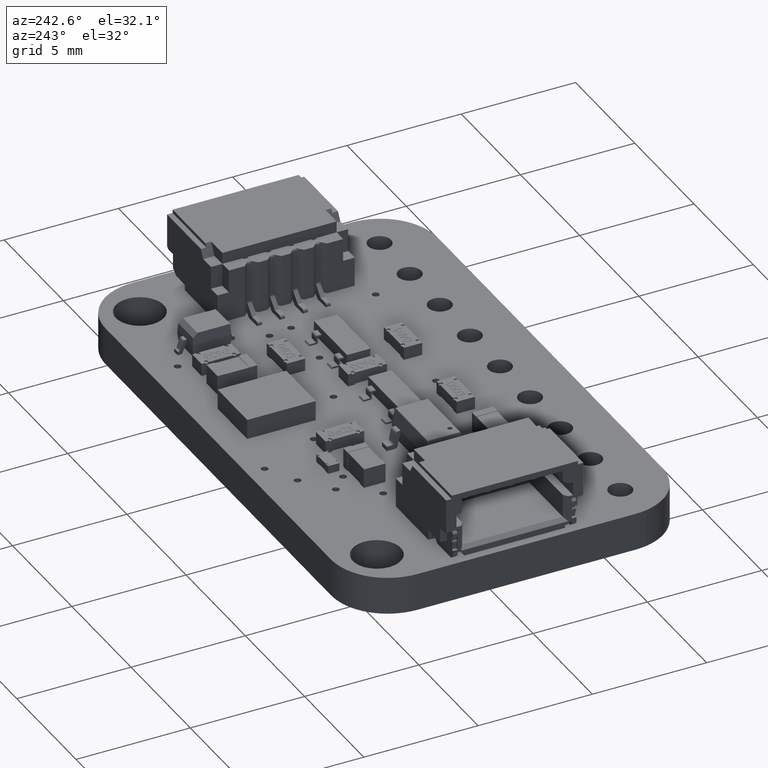
[diagram: clean part render]
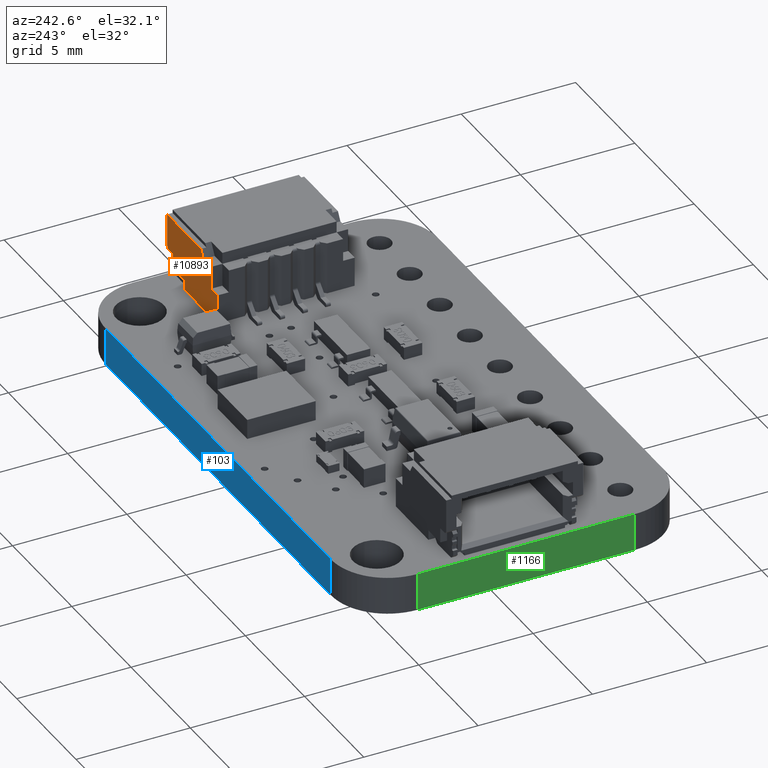
[diagram: same view with three faces highlighted in distinct colors, each labeled with its STEP entity id]
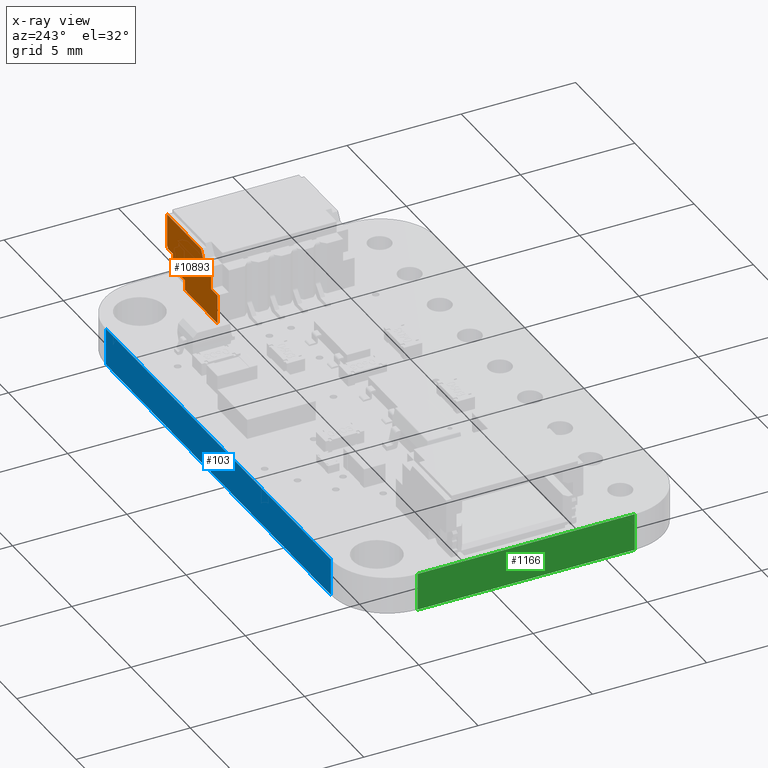
[diagram: x-ray of the same camera — body ghosted, the three highlighted faces saturated]
A machine part, auxiliary view with three faces highlighted in distinct colors.
The next image is the same camera in x-ray (body ghosted, the three faces saturated) — at least one of them is partly hidden behind the body in this view.
Their STEP definitions:

[orange] entity #10893 — the highlighted planar face has unit normal (0, -1, -0).
#8271 = VERTEX_POINT('',#8272);
#8272 = CARTESIAN_POINT('',(3.,1.655,3.895));
#8278 = EDGE_CURVE('',#8271,#8279,#8281,.T.);
#8279 = VERTEX_POINT('',#8280);
#8280 = CARTESIAN_POINT('',(3.,3.105,3.895));
#8281 = LINE('',#8282,#8283);
#8282 = CARTESIAN_POINT('',(3.,3.255,3.895));
#8283 = VECTOR('',#8284,1.);
#8284 = DIRECTION('',(-5.605193857299E-45,1.,3.914088217711E-59));
#8820 = VERTEX_POINT('',#8821);
#8821 = CARTESIAN_POINT('',(3.,0.47,-0.355));
#8827 = EDGE_CURVE('',#8820,#8828,#8830,.T.);
#8828 = VERTEX_POINT('',#8829);
#8829 = CARTESIAN_POINT('',(3.,0.47,2.395));
#8830 = LINE('',#8831,#8832);
#8831 = CARTESIAN_POINT('',(3.,0.47,-1.055));
#8832 = VECTOR('',#8833,1.);
#8833 = DIRECTION('',(-0.,-0.,1.));
#10196 = VERTEX_POINT('',#10197);
#10197 = CARTESIAN_POINT('',(3.,2.755,0.195));
#10212 = VERTEX_POINT('',#10213);
#10213 = CARTESIAN_POINT('',(3.,2.755,0.845));
#10219 = EDGE_CURVE('',#10212,#10196,#10220,.T.);
#10220 = LINE('',#10221,#10222);
#10221 = CARTESIAN_POINT('',(3.,2.755,-0.355));
#10222 = VECTOR('',#10223,1.);
#10223 = DIRECTION('',(-6.982966722219E-15,-0.,-1.));
#10234 = VERTEX_POINT('',#10235);
#10235 = CARTESIAN_POINT('',(3.,1.755,0.195));
#10250 = EDGE_CURVE('',#10196,#10234,#10251,.T.);
#10251 = LINE('',#10252,#10253);
#10252 = CARTESIAN_POINT('',(3.,3.255,0.195));
#10253 = VECTOR('',#10254,1.);
#10254 = DIRECTION('',(5.605193857299E-45,-1.,-3.914088217711E-59));
#10265 = VERTEX_POINT('',#10266);
#10266 = CARTESIAN_POINT('',(3.,0.905,3.395));
#10283 = VERTEX_POINT('',#10284);
#10284 = CARTESIAN_POINT('',(3.,0.905,2.395));
#10290 = EDGE_CURVE('',#10283,#10265,#10291,.T.);
#10291 = LINE('',#10292,#10293);
#10292 = CARTESIAN_POINT('',(3.,0.905,-0.355));
#10293 = VECTOR('',#10294,1.);
#10294 = DIRECTION('',(6.982966722219E-15,0.,1.));
#10305 = VERTEX_POINT('',#10306);
#10306 = CARTESIAN_POINT('',(3.,1.555,3.395));
#10321 = EDGE_CURVE('',#10265,#10305,#10322,.T.);
#10322 = LINE('',#10323,#10324);
#10323 = CARTESIAN_POINT('',(3.,3.255,3.395));
#10324 = VECTOR('',#10325,1.);
#10325 = DIRECTION('',(-5.605193857299E-45,1.,3.914088217711E-59));
#10335 = EDGE_CURVE('',#10305,#10336,#10338,.T.);
#10336 = VERTEX_POINT('',#10337);
#10337 = CARTESIAN_POINT('',(3.,1.555,3.795));
#10338 = LINE('',#10339,#10340);
#10339 = CARTESIAN_POINT('',(3.,1.555,-0.355));
#10340 = VECTOR('',#10341,1.);
#10341 = DIRECTION('',(6.982966722219E-15,0.,1.));
#10367 = VERTEX_POINT('',#10368);
#10368 = CARTESIAN_POINT('',(3.,1.755,-0.355));
#10383 = EDGE_CURVE('',#10234,#10367,#10384,.T.);
#10384 = LINE('',#10385,#10386);
#10385 = CARTESIAN_POINT('',(3.,1.755,-0.355));
#10386 = VECTOR('',#10387,1.);
#10387 = DIRECTION('',(-6.982966722219E-15,-0.,-1.));
#10509 = EDGE_CURVE('',#10510,#8279,#10512,.T.);
#10510 = VERTEX_POINT('',#10511);
#10511 = CARTESIAN_POINT('',(3.,3.105,1.047072594216));
#10512 = LINE('',#10513,#10514);
#10513 = CARTESIAN_POINT('',(3.,3.105,-1.055));
#10514 = VECTOR('',#10515,1.);
#10515 = DIRECTION('',(-0.,-0.,1.));
#10531 = EDGE_CURVE('',#8271,#10336,#10532,.T.);
#10532 = LINE('',#10533,#10534);
#10533 = CARTESIAN_POINT('',(3.,1.555,3.795));
#10534 = VECTOR('',#10535,1.);
#10535 = DIRECTION('',(-4.937703122081E-15,-0.707106781187,
    -0.707106781187));
#10832 = EDGE_CURVE('',#10212,#10510,#10833,.T.);
#10833 = LINE('',#10834,#10835);
#10834 = CARTESIAN_POINT('',(3.,2.755,0.845));
#10835 = VECTOR('',#10836,1.);
#10836 = DIRECTION('',(-0.,0.866025403784,0.5));
#10882 = EDGE_CURVE('',#8828,#10283,#10883,.T.);
#10883 = LINE('',#10884,#10885);
#10884 = CARTESIAN_POINT('',(3.,3.255,2.395));
#10885 = VECTOR('',#10886,1.);
#10886 = DIRECTION('',(-5.605193857299E-45,1.,3.914088217711E-59));
#10893 = ADVANCED_FACE('',(#10894),#10914,.F.);
#10894 = FACE_BOUND('',#10895,.T.);
#10895 = EDGE_LOOP('',(#10896,#10897,#10898,#10899,#10900,#10901,#10902,
    #10903,#10904,#10905,#10911,#10912,#10913));
#10896 = ORIENTED_EDGE('',*,*,#10832,.T.);
#10897 = ORIENTED_EDGE('',*,*,#10509,.T.);
#10898 = ORIENTED_EDGE('',*,*,#8278,.F.);
#10899 = ORIENTED_EDGE('',*,*,#10531,.T.);
#10900 = ORIENTED_EDGE('',*,*,#10335,.F.);
#10901 = ORIENTED_EDGE('',*,*,#10321,.F.);
#10902 = ORIENTED_EDGE('',*,*,#10290,.F.);
#10903 = ORIENTED_EDGE('',*,*,#10882,.F.);
#10904 = ORIENTED_EDGE('',*,*,#8827,.F.);
#10905 = ORIENTED_EDGE('',*,*,#10906,.T.);
#10906 = EDGE_CURVE('',#8820,#10367,#10907,.T.);
#10907 = LINE('',#10908,#10909);
#10908 = CARTESIAN_POINT('',(3.,3.255,-0.355));
#10909 = VECTOR('',#10910,1.);
#10910 = DIRECTION('',(2.480848139264E-29,1.,3.491483361109E-15));
#10911 = ORIENTED_EDGE('',*,*,#10383,.F.);
#10912 = ORIENTED_EDGE('',*,*,#10250,.F.);
#10913 = ORIENTED_EDGE('',*,*,#10219,.F.);
#10914 = PLANE('',#10915);
#10915 = AXIS2_PLACEMENT_3D('',#10916,#10917,#10918);
#10916 = CARTESIAN_POINT('',(3.,3.255,-0.355));
#10917 = DIRECTION('',(-1.,-5.605193857299E-45,6.982966722219E-15));
#10918 = DIRECTION('',(6.982966722219E-15,0.,1.));

[blue] entity #103 — the highlighted planar face has unit normal (0, -1, 0).
#103 = ADVANCED_FACE('',(#104),#138,.F.);
#104 = FACE_BOUND('',#105,.F.);
#105 = EDGE_LOOP('',(#106,#116,#124,#132));
#106 = ORIENTED_EDGE('',*,*,#107,.T.);
#107 = EDGE_CURVE('',#108,#110,#112,.T.);
#108 = VERTEX_POINT('',#109);
#109 = CARTESIAN_POINT('',(19.5,1.,-0.82));
#110 = VERTEX_POINT('',#111);
#111 = CARTESIAN_POINT('',(19.5,1.,0.82));
#112 = LINE('',#113,#114);
#113 = CARTESIAN_POINT('',(19.5,1.,-0.82));
#114 = VECTOR('',#115,1.);
#115 = DIRECTION('',(0.,0.,1.));
#116 = ORIENTED_EDGE('',*,*,#117,.T.);
#117 = EDGE_CURVE('',#110,#118,#120,.T.);
#118 = VERTEX_POINT('',#119);
#119 = CARTESIAN_POINT('',(0.5,1.,0.82));
#120 = LINE('',#121,#122);
#121 = CARTESIAN_POINT('',(19.5,1.,0.82));
#122 = VECTOR('',#123,1.);
#123 = DIRECTION('',(-1.,0.,0.));
#124 = ORIENTED_EDGE('',*,*,#125,.F.);
#125 = EDGE_CURVE('',#126,#118,#128,.T.);
#126 = VERTEX_POINT('',#127);
#127 = CARTESIAN_POINT('',(0.5,1.,-0.82));
#128 = LINE('',#129,#130);
#129 = CARTESIAN_POINT('',(0.5,1.,-0.82));
#130 = VECTOR('',#131,1.);
#131 = DIRECTION('',(0.,0.,1.));
#132 = ORIENTED_EDGE('',*,*,#133,.F.);
#133 = EDGE_CURVE('',#108,#126,#134,.T.);
#134 = LINE('',#135,#136);
#135 = CARTESIAN_POINT('',(19.5,1.,-0.82));
#136 = VECTOR('',#137,1.);
#137 = DIRECTION('',(-1.,0.,0.));
#138 = PLANE('',#139);
#139 = AXIS2_PLACEMENT_3D('',#140,#141,#142);
#140 = CARTESIAN_POINT('',(19.5,1.,-0.82));
#141 = DIRECTION('',(0.,-1.,0.));
#142 = DIRECTION('',(-1.,0.,0.));

[green] entity #1166 — the highlighted planar face has unit normal (1, 0, 0).
#1110 = VERTEX_POINT('',#1111);
#1111 = CARTESIAN_POINT('',(-2.,-1.5,0.82));
#1117 = EDGE_CURVE('',#1118,#1110,#1120,.T.);
#1118 = VERTEX_POINT('',#1119);
#1119 = CARTESIAN_POINT('',(-2.,-1.5,-0.82));
#1120 = LINE('',#1121,#1122);
#1121 = CARTESIAN_POINT('',(-2.,-1.5,-0.82));
#1122 = VECTOR('',#1123,1.);
#1123 = DIRECTION('',(0.,0.,1.));
#1166 = ADVANCED_FACE('',(#1167),#1192,.F.);
#1167 = FACE_BOUND('',#1168,.F.);
#1168 = EDGE_LOOP('',(#1169,#1170,#1178,#1186));
#1169 = ORIENTED_EDGE('',*,*,#1117,.T.);
#1170 = ORIENTED_EDGE('',*,*,#1171,.T.);
#1171 = EDGE_CURVE('',#1110,#1172,#1174,.T.);
#1172 = VERTEX_POINT('',#1173);
#1173 = CARTESIAN_POINT('',(-2.,-11.,0.82));
#1174 = LINE('',#1175,#1176);
#1175 = CARTESIAN_POINT('',(-2.,-1.5,0.82));
#1176 = VECTOR('',#1177,1.);
#1177 = DIRECTION('',(0.,-1.,0.));
#1178 = ORIENTED_EDGE('',*,*,#1179,.F.);
#1179 = EDGE_CURVE('',#1180,#1172,#1182,.T.);
#1180 = VERTEX_POINT('',#1181);
#1181 = CARTESIAN_POINT('',(-2.,-11.,-0.82));
#1182 = LINE('',#1183,#1184);
#1183 = CARTESIAN_POINT('',(-2.,-11.,-0.82));
#1184 = VECTOR('',#1185,1.);
#1185 = DIRECTION('',(0.,0.,1.));
#1186 = ORIENTED_EDGE('',*,*,#1187,.F.);
#1187 = EDGE_CURVE('',#1118,#1180,#1188,.T.);
#1188 = LINE('',#1189,#1190);
#1189 = CARTESIAN_POINT('',(-2.,-1.5,-0.82));
#1190 = VECTOR('',#1191,1.);
#1191 = DIRECTION('',(0.,-1.,0.));
#1192 = PLANE('',#1193);
#1193 = AXIS2_PLACEMENT_3D('',#1194,#1195,#1196);
#1194 = CARTESIAN_POINT('',(-2.,-1.5,-0.82));
#1195 = DIRECTION('',(1.,0.,-0.));
#1196 = DIRECTION('',(0.,-1.,0.));